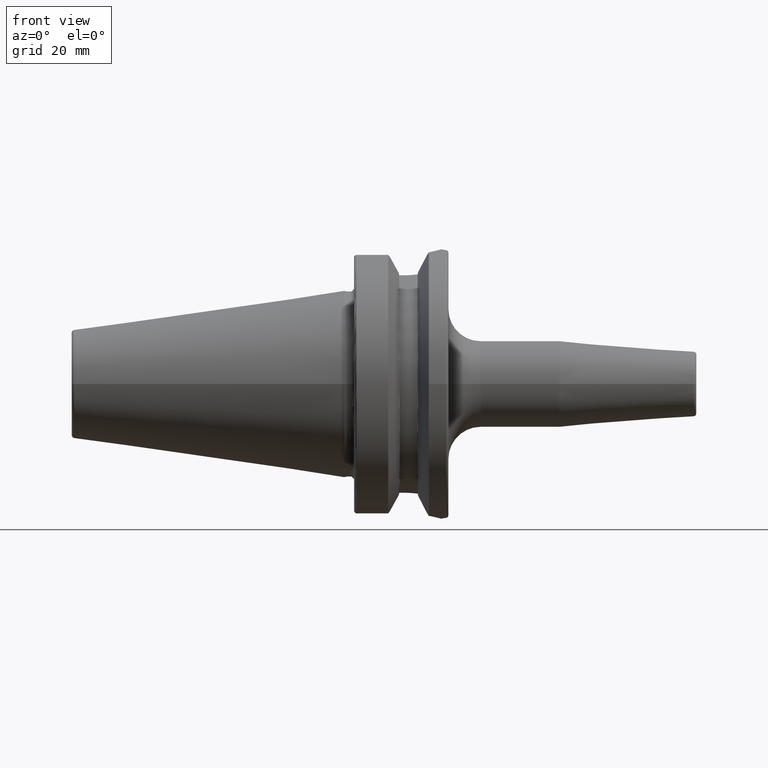
[diagram: clean part render]
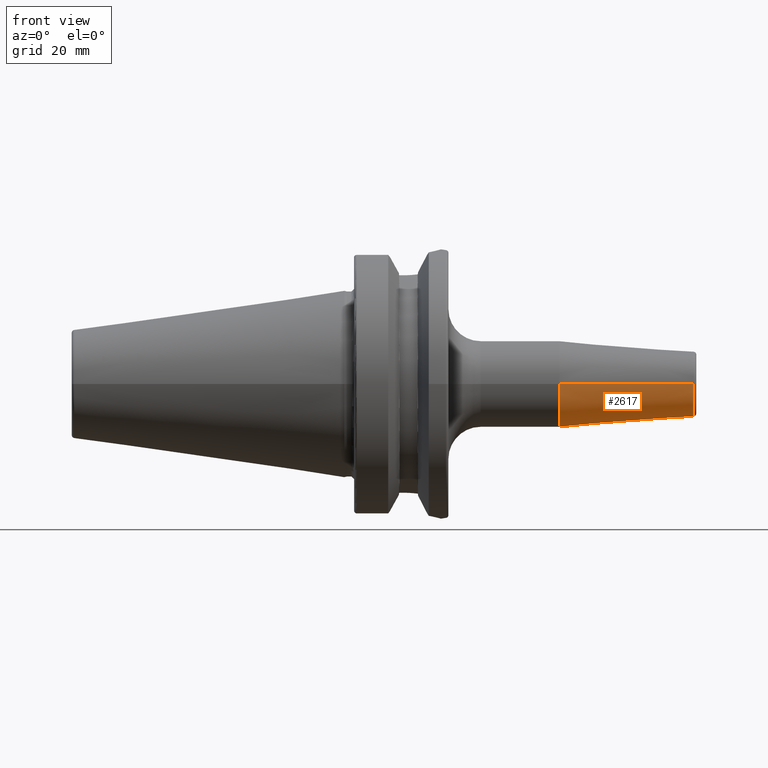
[diagram: same view with one face highlighted and labeled with its STEP entity id]
A machine part, front view. The second image highlights one B-rep face of the part: STEP entity #2617.
In plain terms, the highlighted conical surface has half-angle 4.5 deg.
Its self-contained STEP definition (entity closure, byte-faithful):
#873=CARTESIAN_POINT('',(7.917518105530E1,0.E0,0.E0));
#874=DIRECTION('',(-1.E0,0.E0,0.E0));
#875=DIRECTION('',(0.E0,1.E0,0.E0));
#876=AXIS2_PLACEMENT_3D('',#873,#874,#875);
#882=CARTESIAN_POINT('',(1.290784590957E2,0.E0,0.E0));
#883=DIRECTION('',(-1.E0,0.E0,0.E0));
#884=DIRECTION('',(0.E0,1.E0,0.E0));
#885=AXIS2_PLACEMENT_3D('',#882,#883,#884);
#887=DIRECTION('',(-9.969173337331E-1,7.845909572785E-2,8.675599470407E-14));
#888=VECTOR('',#887,5.005758888107E1);
#889=CARTESIAN_POINT('',(1.290784590957E2,1.207252684207E1,
-4.340836480986E-12));
#890=LINE('',#889,#888);
#891=DIRECTION('',(-9.969173337331E-1,-7.845909572785E-2,-8.674847229965E-14));
#892=VECTOR('',#891,5.005758888107E1);
#893=CARTESIAN_POINT('',(1.290784590957E2,-1.207252684207E1,
4.340459927558E-12));
#894=LINE('',#893,#892);
#1391=CARTESIAN_POINT('',(7.917518105530E1,1.6E1,0.E0));
#1392=CARTESIAN_POINT('',(7.917518105530E1,-1.6E1,0.E0));
#1393=VERTEX_POINT('',#1391);
#1394=VERTEX_POINT('',#1392);
#1411=CARTESIAN_POINT('',(1.290784590957E2,1.207252684207E1,0.E0));
#1412=CARTESIAN_POINT('',(1.290784590957E2,-1.207252684207E1,0.E0));
#1413=VERTEX_POINT('',#1411);
#1414=VERTEX_POINT('',#1412);
#2603=CARTESIAN_POINT('',(1.041268200755E2,0.E0,0.E0));
#2604=DIRECTION('',(-1.E0,0.E0,0.E0));
#2605=DIRECTION('',(0.E0,1.E0,0.E0));
#2606=AXIS2_PLACEMENT_3D('',#2603,#2604,#2605);
#2607=CONICAL_SURFACE('',#2606,1.403626342104E1,4.5E0);
#2609=ORIENTED_EDGE('',*,*,#2608,.F.);
#2611=ORIENTED_EDGE('',*,*,#2610,.T.);
#2612=ORIENTED_EDGE('',*,*,#2597,.T.);
#2614=ORIENTED_EDGE('',*,*,#2613,.F.);
#2615=EDGE_LOOP('',(#2609,#2611,#2612,#2614));
#2616=FACE_OUTER_BOUND('',#2615,.F.);
#2617=ADVANCED_FACE('',(#2616),#2607,.T.);
#877=CIRCLE('',#876,1.6E1);
#886=CIRCLE('',#885,1.207252684207E1);
#2597=EDGE_CURVE('',#1393,#1394,#877,.T.);
#2608=EDGE_CURVE('',#1413,#1414,#886,.T.);
#2610=EDGE_CURVE('',#1413,#1393,#890,.T.);
#2613=EDGE_CURVE('',#1414,#1394,#894,.T.);